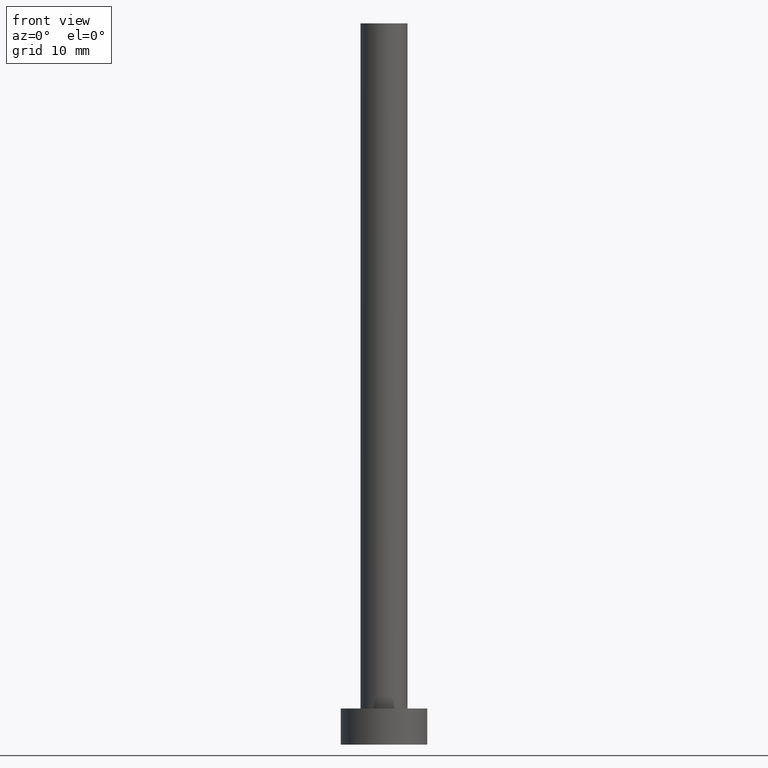
[diagram: clean part render]
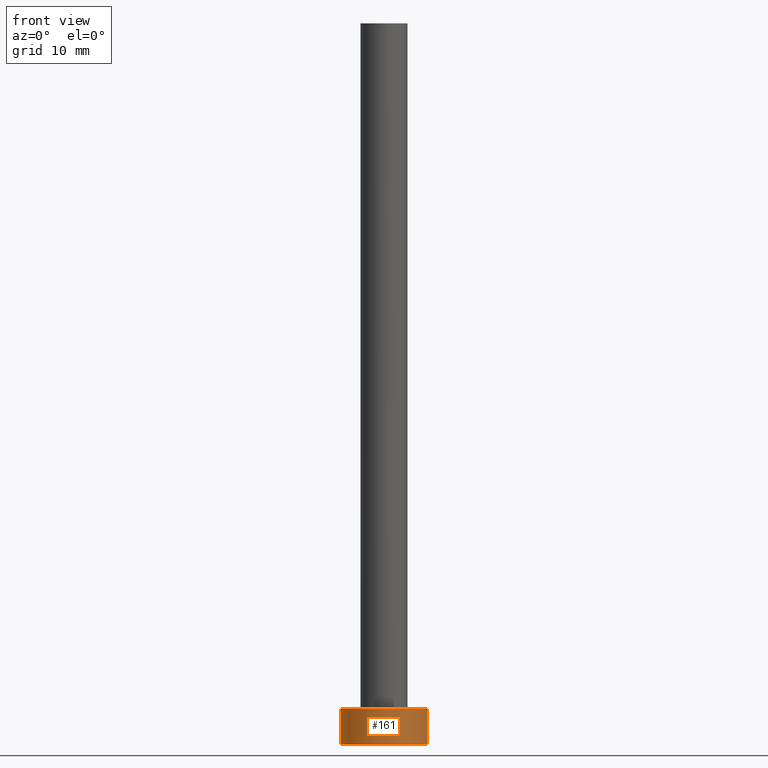
[diagram: same view with one face highlighted and labeled with its STEP entity id]
A machine part, front view. The second image highlights one B-rep face of the part: STEP entity #161.
In plain terms, the highlighted cylindrical surface (partial cylindrical patch) has radius 6 mm, axis along (-0, -0, -1).
Its self-contained STEP definition (entity closure, byte-faithful):
#9 = CIRCLE ( 'NONE', #192, 6.000000000000000888 ) ;
#12 = EDGE_CURVE ( 'NONE', #200, #25, #251, .T. ) ;
#25 = VERTEX_POINT ( 'NONE', #214 ) ;
#41 = CARTESIAN_POINT ( 'NONE',  ( 0.000000000000000000, 0.000000000000000000, 5.000000000000000000 ) ) ;
#46 = FACE_OUTER_BOUND ( 'NONE', #74, .T. ) ;
#47 = DIRECTION ( 'NONE',  ( -0.000000000000000000, -0.000000000000000000, -1.000000000000000000 ) ) ;
#55 = DIRECTION ( 'NONE',  ( 0.000000000000000000, 0.000000000000000000, 1.000000000000000000 ) ) ;
#70 = VECTOR ( 'NONE', #237, 1000.000000000000000 ) ;
#74 = EDGE_LOOP ( 'NONE', ( #187, #234, #184, #99 ) ) ;
#79 = LINE ( 'NONE', #213, #70 ) ;
#82 = EDGE_CURVE ( 'NONE', #200, #224, #9, .T. ) ;
#99 = ORIENTED_EDGE ( 'NONE', *, *, #175, .T. ) ;
#117 = CARTESIAN_POINT ( 'NONE',  ( 6.000000000000000888, 7.347880794884120722E-16, 5.000000000000000000 ) ) ;
#121 = CARTESIAN_POINT ( 'NONE',  ( 0.000000000000000000, 0.000000000000000000, 0.000000000000000000 ) ) ;
#123 = VECTOR ( 'NONE', #248, 1000.000000000000000 ) ;
#125 = DIRECTION ( 'NONE',  ( -1.000000000000000000, 0.000000000000000000, 0.000000000000000000 ) ) ;
#129 = CARTESIAN_POINT ( 'NONE',  ( -6.000000000000000888, 0.000000000000000000, 5.000000000000000000 ) ) ;
#148 = CYLINDRICAL_SURFACE ( 'NONE', #239, 6.000000000000000888 ) ;
#150 = CIRCLE ( 'NONE', #180, 6.000000000000000888 ) ;
#161 = ADVANCED_FACE ( 'NONE', ( #46 ), #148, .T. ) ;
#175 = EDGE_CURVE ( 'NONE', #25, #177, #150, .T. ) ;
#177 = VERTEX_POINT ( 'NONE', #179 ) ;
#179 = CARTESIAN_POINT ( 'NONE',  ( 6.000000000000000888, 7.347880794884120722E-16, 0.000000000000000000 ) ) ;
#180 = AXIS2_PLACEMENT_3D ( 'NONE', #121, #219, #201 ) ;
#181 = CARTESIAN_POINT ( 'NONE',  ( -6.000000000000000888, 0.000000000000000000, 5.000000000000000000 ) ) ;
#184 = ORIENTED_EDGE ( 'NONE', *, *, #12, .T. ) ;
#187 = ORIENTED_EDGE ( 'NONE', *, *, #212, .F. ) ;
#192 = AXIS2_PLACEMENT_3D ( 'NONE', #41, #55, #253 ) ;
#200 = VERTEX_POINT ( 'NONE', #129 ) ;
#201 = DIRECTION ( 'NONE',  ( 1.000000000000000000, 0.000000000000000000, 0.000000000000000000 ) ) ;
#212 = EDGE_CURVE ( 'NONE', #224, #177, #79, .T. ) ;
#213 = CARTESIAN_POINT ( 'NONE',  ( 6.000000000000000888, 7.347880794884120722E-16, 5.000000000000000000 ) ) ;
#214 = CARTESIAN_POINT ( 'NONE',  ( -6.000000000000000888, 0.000000000000000000, 0.000000000000000000 ) ) ;
#219 = DIRECTION ( 'NONE',  ( 0.000000000000000000, 0.000000000000000000, 1.000000000000000000 ) ) ;
#224 = VERTEX_POINT ( 'NONE', #117 ) ;
#225 = CARTESIAN_POINT ( 'NONE',  ( 0.000000000000000000, 0.000000000000000000, 5.000000000000000000 ) ) ;
#234 = ORIENTED_EDGE ( 'NONE', *, *, #82, .F. ) ;
#237 = DIRECTION ( 'NONE',  ( -0.000000000000000000, -0.000000000000000000, -1.000000000000000000 ) ) ;
#239 = AXIS2_PLACEMENT_3D ( 'NONE', #225, #47, #125 ) ;
#248 = DIRECTION ( 'NONE',  ( -0.000000000000000000, -0.000000000000000000, -1.000000000000000000 ) ) ;
#251 = LINE ( 'NONE', #181, #123 ) ;
#253 = DIRECTION ( 'NONE',  ( 1.000000000000000000, 0.000000000000000000, 0.000000000000000000 ) ) ;